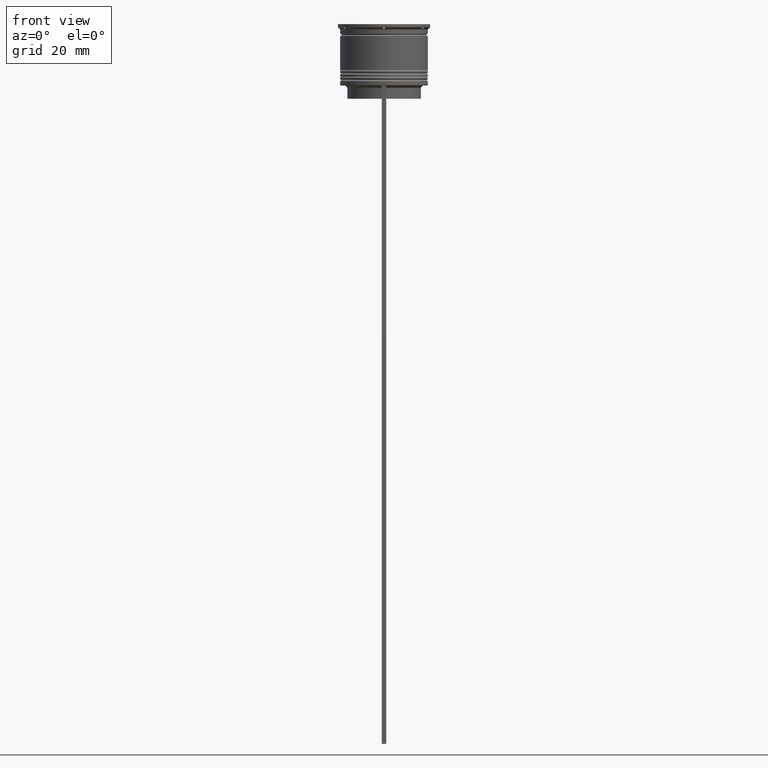
[diagram: clean part render]
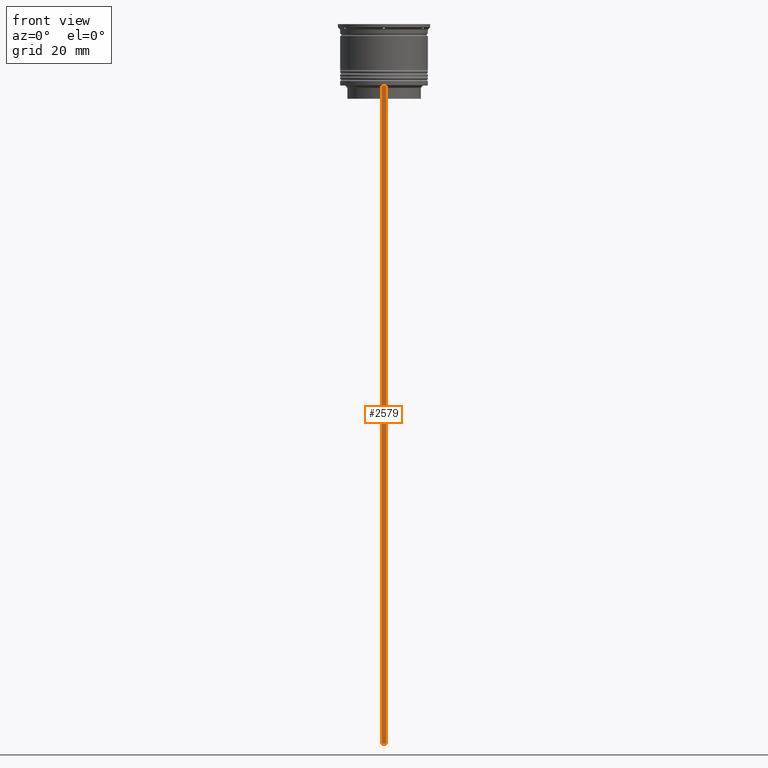
[diagram: same view with one face highlighted and labeled with its STEP entity id]
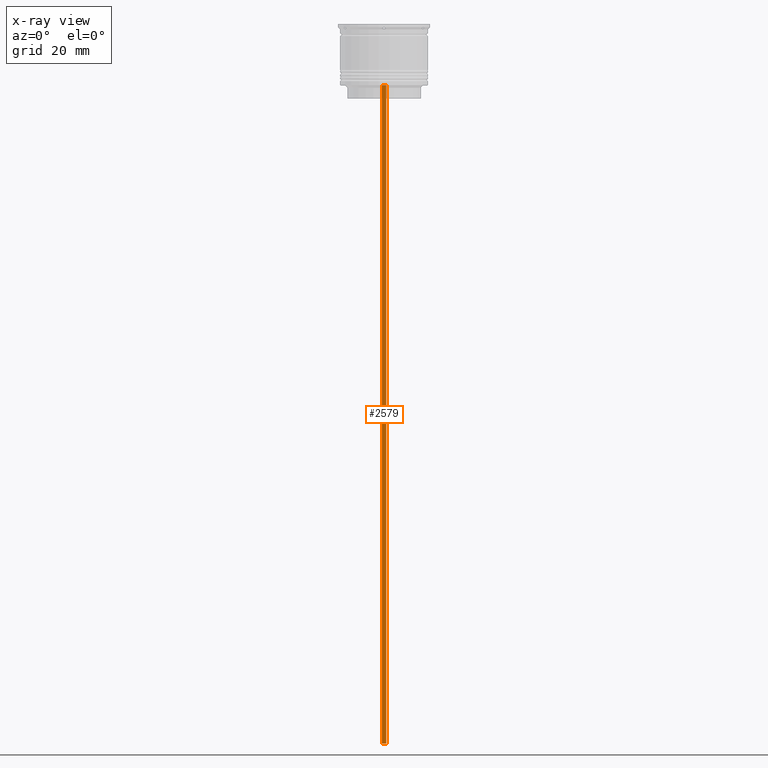
[diagram: x-ray of the same camera — body ghosted, the highlighted face saturated]
A machine part, front view. The second image highlights one B-rep face of the part: STEP entity #2579.
The next image is the same camera in x-ray: the body ghosted, the highlighted face saturated — about 0% of this face is hidden behind the body in this view.
In plain terms, the highlighted planar face has unit normal (0, -1, -0).
Its self-contained STEP definition (entity closure, byte-faithful):
#45 = VERTEX_POINT ( 'NONE', #1997 ) ;
#332 = EDGE_LOOP ( 'NONE', ( #472, #1192, #2535, #2282 ) ) ;
#379 = AXIS2_PLACEMENT_3D ( 'NONE', #2020, #1828, #611 ) ;
#407 = VECTOR ( 'NONE', #480, 1000.000000000000000 ) ;
#449 = LINE ( 'NONE', #1834, #986 ) ;
#460 = EDGE_CURVE ( 'NONE', #478, #637, #1398, .T. ) ;
#472 = ORIENTED_EDGE ( 'NONE', *, *, #1483, .F. ) ;
#478 = VERTEX_POINT ( 'NONE', #2396 ) ;
#480 = DIRECTION ( 'NONE',  ( 0.000000000000000000, 0.000000000000000000, -1.000000000000000000 ) ) ;
#516 = FACE_OUTER_BOUND ( 'NONE', #332, .T. ) ;
#602 = EDGE_CURVE ( 'NONE', #45, #637, #449, .T. ) ;
#611 = DIRECTION ( 'NONE',  ( 0.000000000000000000, 0.000000000000000000, -1.000000000000000000 ) ) ;
#637 = VERTEX_POINT ( 'NONE', #885 ) ;
#789 = DIRECTION ( 'NONE',  ( 0.000000000000000000, 0.000000000000000000, -1.000000000000000000 ) ) ;
#826 = DIRECTION ( 'NONE',  ( -1.000000000000000000, 0.000000000000000000, 0.000000000000000000 ) ) ;
#880 = VERTEX_POINT ( 'NONE', #1153 ) ;
#885 = CARTESIAN_POINT ( 'NONE',  ( -0.5000000000000001110, -9.749999999999998224, -163.9999999999999716 ) ) ;
#986 = VECTOR ( 'NONE', #826, 1000.000000000000000 ) ;
#1103 = EDGE_CURVE ( 'NONE', #880, #45, #1871, .T. ) ;
#1153 = CARTESIAN_POINT ( 'NONE',  ( 0.4999999999999998890, -9.749999999999998224, -14.00000000000000178 ) ) ;
#1192 = ORIENTED_EDGE ( 'NONE', *, *, #460, .T. ) ;
#1326 = PLANE ( 'NONE',  #379 ) ;
#1398 = LINE ( 'NONE', #2574, #2562 ) ;
#1457 = DIRECTION ( 'NONE',  ( 1.000000000000000000, 0.000000000000000000, 0.000000000000000000 ) ) ;
#1483 = EDGE_CURVE ( 'NONE', #478, #880, #2217, .T. ) ;
#1828 = DIRECTION ( 'NONE',  ( 0.000000000000000000, -1.000000000000000000, -0.000000000000000000 ) ) ;
#1834 = CARTESIAN_POINT ( 'NONE',  ( 0.4999999999999998890, -9.749999999999998224, -163.9999999999999716 ) ) ;
#1871 = LINE ( 'NONE', #2054, #407 ) ;
#1968 = CARTESIAN_POINT ( 'NONE',  ( 0.4999999999999998890, -9.749999999999998224, -14.00000000000000178 ) ) ;
#1997 = CARTESIAN_POINT ( 'NONE',  ( 0.4999999999999998890, -9.749999999999998224, -163.9999999999999716 ) ) ;
#2020 = CARTESIAN_POINT ( 'NONE',  ( 0.4999999999999998890, -9.749999999999998224, 5.525624189766635830 ) ) ;
#2054 = CARTESIAN_POINT ( 'NONE',  ( 0.4999999999999998890, -9.749999999999998224, 5.525624189766635830 ) ) ;
#2068 = VECTOR ( 'NONE', #1457, 1000.000000000000000 ) ;
#2217 = LINE ( 'NONE', #1968, #2068 ) ;
#2282 = ORIENTED_EDGE ( 'NONE', *, *, #1103, .F. ) ;
#2396 = CARTESIAN_POINT ( 'NONE',  ( -0.5000000000000001110, -9.749999999999998224, -14.00000000000000178 ) ) ;
#2535 = ORIENTED_EDGE ( 'NONE', *, *, #602, .F. ) ;
#2562 = VECTOR ( 'NONE', #789, 1000.000000000000000 ) ;
#2574 = CARTESIAN_POINT ( 'NONE',  ( -0.5000000000000001110, -9.749999999999998224, 5.525624189766635830 ) ) ;
#2579 = ADVANCED_FACE ( 'NONE', ( #516 ), #1326, .T. ) ;